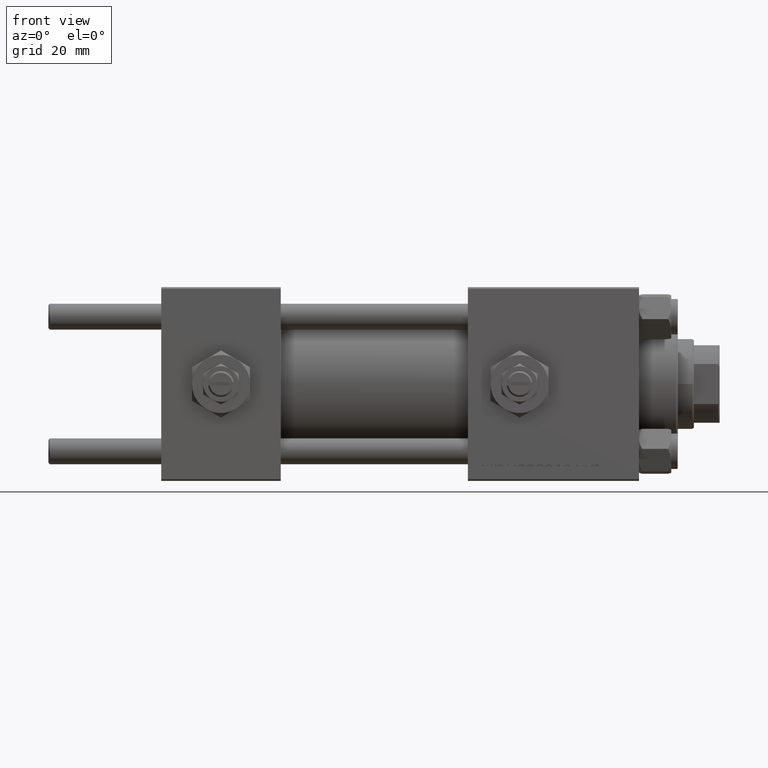
[diagram: clean part render]
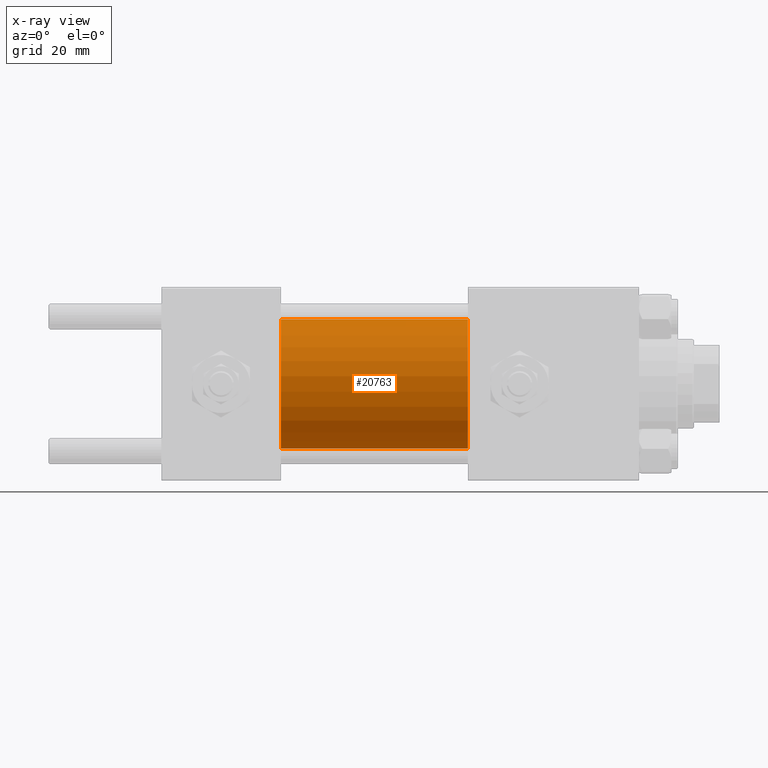
[diagram: x-ray — body ghosted, one internal face saturated and labeled with its STEP entity id]
A machine part, front view, then the same camera in x-ray: the body is ghosted and one INTERNAL B-rep face — a face not visible from any outside direction — is saturated and labeled: STEP entity #20763.
In plain terms, the highlighted cylindrical surface (partial cylindrical patch) has radius 20 mm, axis along (-1, -0, -0).
Its self-contained STEP definition (entity closure, byte-faithful):
#2524 = CARTESIAN_POINT ( 'NONE',  ( 95.00000000000000000, 0.000000000000000000, 0.000000000000000000 ) ) ;
#4295 = CIRCLE ( 'NONE', #29573, 20.00000000000000000 ) ;
#6844 = EDGE_CURVE ( 'NONE', #13727, #48765, #26912, .T. ) ;
#7811 = CARTESIAN_POINT ( 'NONE',  ( 95.00000000000000000, 2.449293598294706119E-15, -20.00000000000000000 ) ) ;
#8466 = CARTESIAN_POINT ( 'NONE',  ( 95.00000000000000000, 0.000000000000000000, 20.00000000000000000 ) ) ;
#10657 = CARTESIAN_POINT ( 'NONE',  ( 95.00000000000000000, 2.449293598294706119E-15, -20.00000000000000000 ) ) ;
#13147 = DIRECTION ( 'NONE',  ( 1.000000000000000000, 0.000000000000000000, 0.000000000000000000 ) ) ;
#13310 = VECTOR ( 'NONE', #31136, 1000.000000000000000 ) ;
#13573 = DIRECTION ( 'NONE',  ( -1.000000000000000000, -0.000000000000000000, -0.000000000000000000 ) ) ;
#13727 = VERTEX_POINT ( 'NONE', #8466 ) ;
#14502 = EDGE_CURVE ( 'NONE', #20876, #29633, #34151, .T. ) ;
#15901 = EDGE_CURVE ( 'NONE', #13727, #20876, #41554, .T. ) ;
#19385 = VECTOR ( 'NONE', #13573, 1000.000000000000000 ) ;
#20763 = ADVANCED_FACE ( 'NONE', ( #46321 ), #21540, .F. ) ;
#20876 = VERTEX_POINT ( 'NONE', #7811 ) ;
#21329 = CARTESIAN_POINT ( 'NONE',  ( 37.00000000000000000, 0.000000000000000000, 20.00000000000000000 ) ) ;
#21540 = CYLINDRICAL_SURFACE ( 'NONE', #44255, 20.00000000000000000 ) ;
#23573 = DIRECTION ( 'NONE',  ( 1.000000000000000000, 0.000000000000000000, 0.000000000000000000 ) ) ;
#26912 = LINE ( 'NONE', #35085, #13310 ) ;
#28470 = DIRECTION ( 'NONE',  ( 0.000000000000000000, 0.000000000000000000, -1.000000000000000000 ) ) ;
#28860 = EDGE_LOOP ( 'NONE', ( #40924, #33215, #38176, #50687 ) ) ;
#29573 = AXIS2_PLACEMENT_3D ( 'NONE', #43341, #23573, #35971 ) ;
#29633 = VERTEX_POINT ( 'NONE', #49579 ) ;
#31136 = DIRECTION ( 'NONE',  ( -1.000000000000000000, -0.000000000000000000, -0.000000000000000000 ) ) ;
#32307 = AXIS2_PLACEMENT_3D ( 'NONE', #36652, #13147, #28470 ) ;
#33215 = ORIENTED_EDGE ( 'NONE', *, *, #14502, .T. ) ;
#34151 = LINE ( 'NONE', #10657, #19385 ) ;
#34739 = DIRECTION ( 'NONE',  ( -1.000000000000000000, -0.000000000000000000, -0.000000000000000000 ) ) ;
#35085 = CARTESIAN_POINT ( 'NONE',  ( 95.00000000000000000, 0.000000000000000000, 20.00000000000000000 ) ) ;
#35971 = DIRECTION ( 'NONE',  ( 0.000000000000000000, 0.000000000000000000, -1.000000000000000000 ) ) ;
#36652 = CARTESIAN_POINT ( 'NONE',  ( 95.00000000000000000, 0.000000000000000000, 0.000000000000000000 ) ) ;
#38176 = ORIENTED_EDGE ( 'NONE', *, *, #41782, .F. ) ;
#40924 = ORIENTED_EDGE ( 'NONE', *, *, #15901, .T. ) ;
#41554 = CIRCLE ( 'NONE', #32307, 20.00000000000000000 ) ;
#41782 = EDGE_CURVE ( 'NONE', #48765, #29633, #4295, .T. ) ;
#43341 = CARTESIAN_POINT ( 'NONE',  ( 37.00000000000000000, 0.000000000000000000, 0.000000000000000000 ) ) ;
#44255 = AXIS2_PLACEMENT_3D ( 'NONE', #2524, #34739, #45785 ) ;
#45785 = DIRECTION ( 'NONE',  ( 0.000000000000000000, 0.000000000000000000, 1.000000000000000000 ) ) ;
#46321 = FACE_OUTER_BOUND ( 'NONE', #28860, .T. ) ;
#48765 = VERTEX_POINT ( 'NONE', #21329 ) ;
#49579 = CARTESIAN_POINT ( 'NONE',  ( 37.00000000000000000, 2.449293598294706119E-15, -20.00000000000000000 ) ) ;
#50687 = ORIENTED_EDGE ( 'NONE', *, *, #6844, .F. ) ;